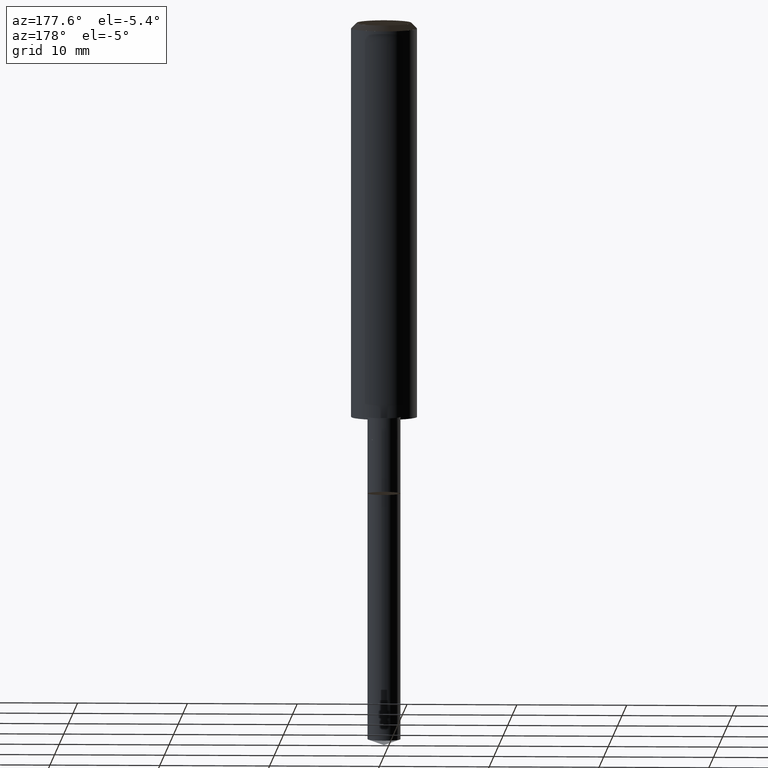
[diagram: clean part render]
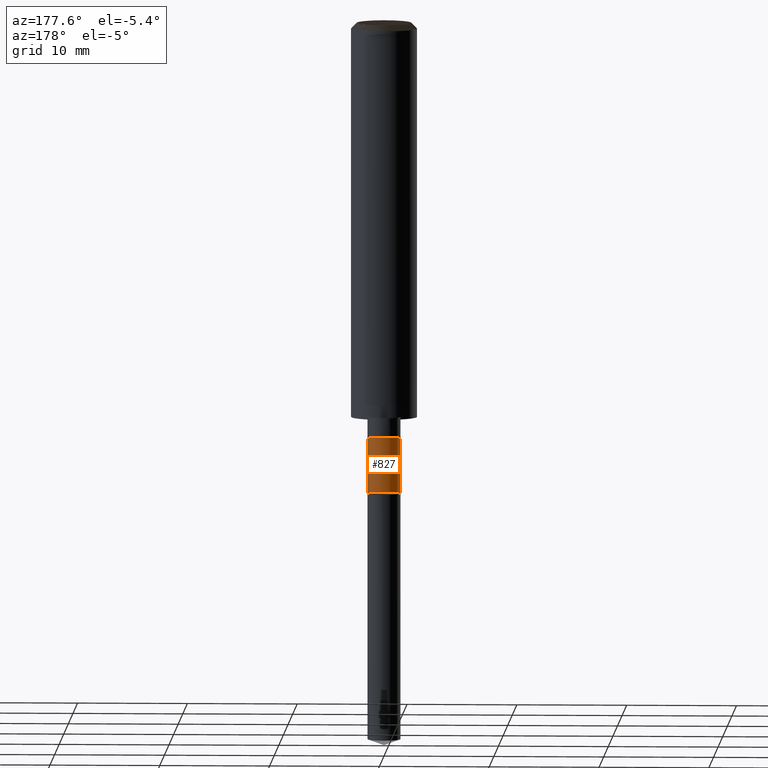
[diagram: same view with one face highlighted and labeled with its STEP entity id]
A machine part, auxiliary view. The second image highlights one B-rep face of the part: STEP entity #827.
In plain terms, the highlighted face is a freeform B-spline surface patch.
Its self-contained STEP definition (entity closure, byte-faithful):
#626=CARTESIAN_POINT('',(1.5,0.0,-7.0));
#627=CARTESIAN_POINT('',(1.5,1.5,-7.0));
#628=CARTESIAN_POINT('',(0.0,1.5,-7.0));
#629=CARTESIAN_POINT('',(-1.5,1.5,-7.0));
#630=CARTESIAN_POINT('',(-1.5,0.0,-7.0));
#638=CARTESIAN_POINT('',(1.5,0.0,-2.0));
#639=CARTESIAN_POINT('',(1.5,1.5,-2.0));
#640=CARTESIAN_POINT('',(0.0,1.5,-2.0));
#641=CARTESIAN_POINT('',(-1.5,1.5,-2.0));
#642=CARTESIAN_POINT('',(-1.5,0.0,-2.0));
#808=(
BOUNDED_SURFACE()
B_SPLINE_SURFACE(1,2,(
(#626,#627,#628,#629,#630),
(#638,#639,#640,#641,#642)
), .UNSPECIFIED.,.F.,.F.,.F.)
B_SPLINE_SURFACE_WITH_KNOTS((2,2),(3,2,3),(
0.0,1.0),(
0.0,0.5,1.0), .UNSPECIFIED.)
GEOMETRIC_REPRESENTATION_ITEM()
RATIONAL_B_SPLINE_SURFACE(((1.0,0.707106781187,1.0,0.707106781187,1.0),
(1.0,0.707106781187,1.0,0.707106781187,1.0)
))
REPRESENTATION_ITEM('')
SURFACE()
);
#809=(
BOUNDED_CURVE()
B_SPLINE_CURVE(2,(#630,#629,#628,#627,#626),.UNSPECIFIED.,.F.,.F.)
B_SPLINE_CURVE_WITH_KNOTS((3,2,3),
(0.0,0.5,1.0),.UNSPECIFIED.)
CURVE()
GEOMETRIC_REPRESENTATION_ITEM()
RATIONAL_B_SPLINE_CURVE((1.0,0.707106781187,1.0,0.707106781187,1.0))
REPRESENTATION_ITEM('')
);
#810=(
BOUNDED_CURVE()
B_SPLINE_CURVE(1,(#626,#638),.UNSPECIFIED.,.F.,.F.)
B_SPLINE_CURVE_WITH_KNOTS((2,2),
(0.0,1.0),.UNSPECIFIED.)
CURVE()
GEOMETRIC_REPRESENTATION_ITEM()
RATIONAL_B_SPLINE_CURVE((1.0,1.0))
REPRESENTATION_ITEM('')
);
#811=(
BOUNDED_CURVE()
B_SPLINE_CURVE(2,(#638,#639,#640,#641,#642),.UNSPECIFIED.,.F.,.F.)
B_SPLINE_CURVE_WITH_KNOTS((3,2,3),
(0.0,0.5,1.0),.UNSPECIFIED.)
CURVE()
GEOMETRIC_REPRESENTATION_ITEM()
RATIONAL_B_SPLINE_CURVE((1.0,0.707106781187,1.0,0.707106781187,1.0))
REPRESENTATION_ITEM('')
);
#812=(
BOUNDED_CURVE()
B_SPLINE_CURVE(1,(#642,#630),.UNSPECIFIED.,.F.,.F.)
B_SPLINE_CURVE_WITH_KNOTS((2,2),
(0.0,1.0),.UNSPECIFIED.)
CURVE()
GEOMETRIC_REPRESENTATION_ITEM()
RATIONAL_B_SPLINE_CURVE((1.0,1.0))
REPRESENTATION_ITEM('')
);
#813=VERTEX_POINT('',#626);
#814=VERTEX_POINT('',#630);
#815=VERTEX_POINT('',#638);
#816=VERTEX_POINT('',#642);
#817=EDGE_CURVE('',#814,#813,#809,.T.);
#818=EDGE_CURVE('',#813,#815,#810,.T.);
#819=EDGE_CURVE('',#815,#816,#811,.T.);
#820=EDGE_CURVE('',#816,#814,#812,.T.);
#821=ORIENTED_EDGE('',*,*,#817,.T.);
#822=ORIENTED_EDGE('',*,*,#818,.T.);
#823=ORIENTED_EDGE('',*,*,#819,.T.);
#824=ORIENTED_EDGE('',*,*,#820,.T.);
#825=EDGE_LOOP('',(#821,#822,#823,#824));
#826=FACE_OUTER_BOUND('',#825,.T.);
#827=ADVANCED_FACE('',(#826),#808,.T.);